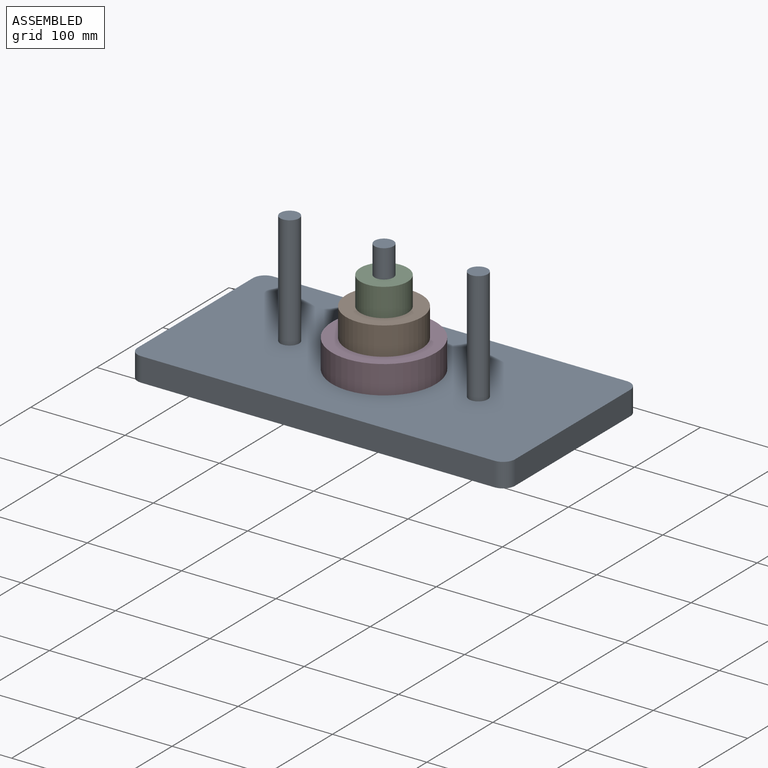
[diagram: assembled view]
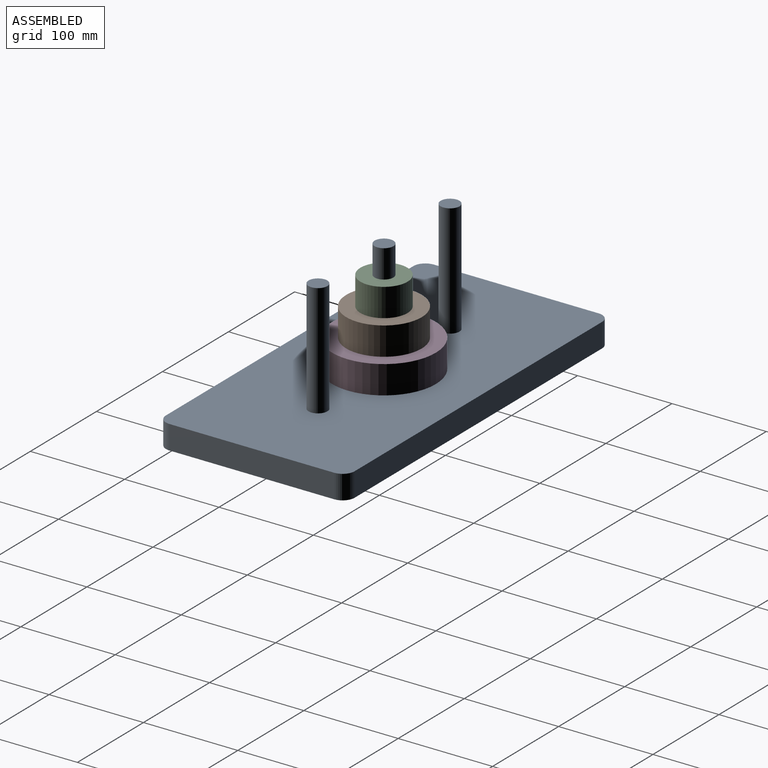
[diagram: assembled view, second angle]
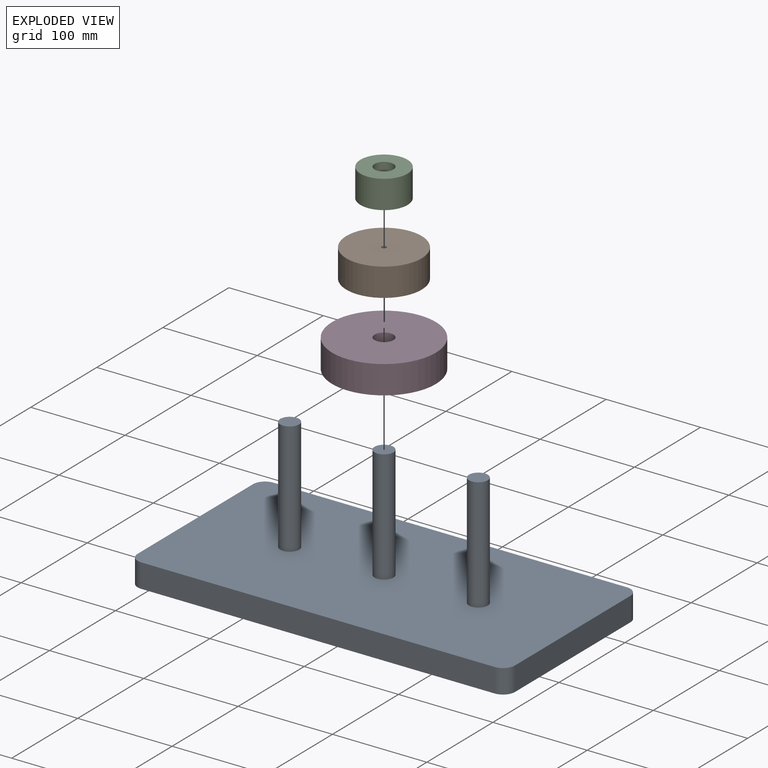
[diagram: exploded view]
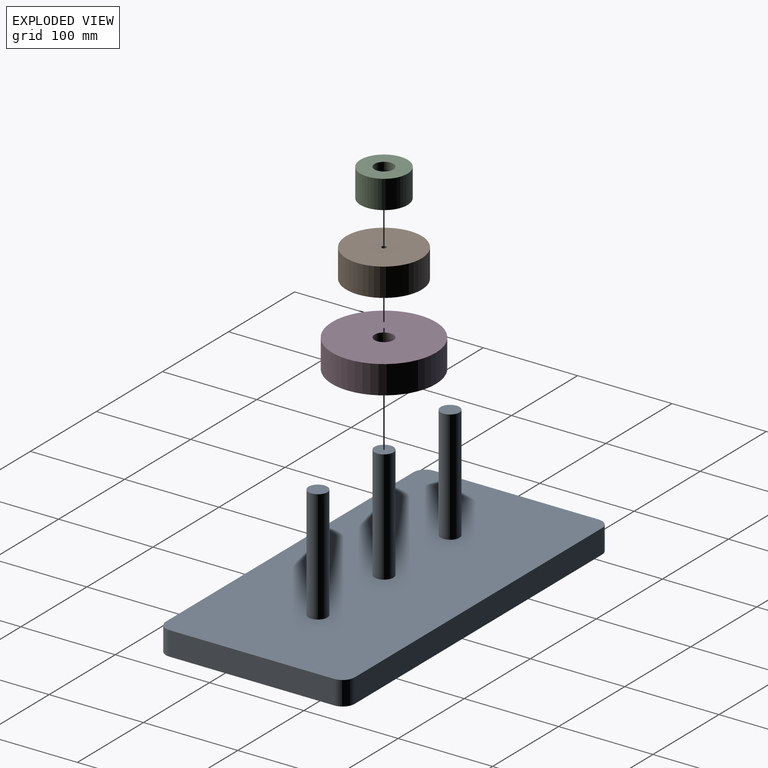
[diagram: exploded view, second angle]
ASSEMBLY  parts=4 mates=3
PART A: 16 faces, bbox 400x200x145.4 mm
  f0: plane 174.6x25.4mm, normal (1,0,0), area 4434.8mm2, adj f4,f5,f12,f15
  f1: plane 374.6x25.4mm, normal (0,1,0), area 9514.8mm2, adj f4,f5,f12,f13
  f2: plane 174.6x25.4mm, normal (-1,0,0), area 4434.8mm2, adj f4,f5,f13,f14
  f3: plane 374.6x25.4mm, normal (0,-1,0), area 9514.8mm2, adj f4,f5,f14,f15
  f4: plane 400x200mm, normal (0,0,1), area 78919.1mm2, adj f0,f1,f2,f3,f6,f8,f10,f12
  f5: plane 400x200mm, normal (0,0,-1), area 79861.5mm2, adj f0,f1,f2,f3,f12,f13,f14,f15
  f6: cylinder r=10mm len=120mm, axis (0,0,-1), area 7539.8mm2, adj f4,f7
  f7: plane 20x20mm, normal (0,0,1), area 314.2mm2, adj f6
  f8: cylinder r=10mm len=120mm, axis (0,0,-1), area 7539.8mm2, adj f4,f9
  f9: plane 20x20mm, normal (0,0,1), area 314.2mm2, adj f8
  f10: cylinder r=10mm len=120mm, axis (0,0,-1), area 7539.8mm2, adj f4,f11
  f11: plane 20x20mm, normal (0,0,1), area 314.2mm2, adj f10
  f12: cylinder r=12.7mm len=25.4mm, axis (0,0,-1), area 506.7mm2, adj f0,f1,f4,f5
  f13: cylinder r=12.7mm len=25.4mm, axis (0,0,1), area 506.7mm2, adj f1,f2,f4,f5
  f14: cylinder r=12.7mm len=25.4mm, axis (0,0,-1), area 506.7mm2, adj f2,f3,f4,f5
  f15: cylinder r=12.7mm len=25.4mm, axis (0,0,1), area 506.7mm2, adj f0,f3,f4,f5
PART B: 4 faces, bbox 80x80x30 mm
  f0: cylinder r=40mm len=80mm, axis (0,0,-1), area 7539.8mm2, adj f1,f2
  f1: plane 80x80mm, normal (0,0,1), area 5006.9mm2, adj f0,f3
  f2: plane 80x80mm, normal (0,0,-1), area 5006.9mm2, adj f0,f3
  f3: cylinder r=2.5mm len=30mm, axis (0,0,1), area 471.2mm2, adj f1,f2
PART C: 4 faces, bbox 50x50x30 mm
  f0: cylinder r=10mm len=30mm, axis (0,0,-1), area 1885mm2, adj f2,f3
  f1: cylinder r=25mm len=50mm, axis (0,0,-1), area 4712.4mm2, adj f2,f3
  f2: plane 50x50mm, normal (0,0,1), area 1649.3mm2, adj f0,f1
  f3: plane 50x50mm, normal (0,0,-1), area 1649.3mm2, adj f0,f1
PART D: 4 faces, bbox 110x110x30 mm
  f0: cylinder r=10mm len=30mm, axis (0,0,-1), area 1885mm2, adj f2,f3
  f1: cylinder r=55mm len=110mm, axis (0,0,-1), area 10367.3mm2, adj f2,f3
  f2: plane 110x110mm, normal (0,0,1), area 9189.2mm2, adj f0,f1
  f3: plane 110x110mm, normal (0,0,-1), area 9189.2mm2, adj f0,f1
PLACE A t=(-11.33,37.01,-7.37)mm
PLACE B t=(-11.33,37.01,48.03)mm
PLACE C t=(-11.33,37.01,78.03)mm
PLACE D t=(-11.33,37.01,18.03)mm
MATE slider C.f0 <-> B.f0  axis (0,0,-1) through (-11.33,37.01,78.03)mm
MATE slider D.f0 <-> A.f6  axis (0,0,-1) through (-11.33,37.01,18.03)mm
MATE slider B.f0 <-> D.f0  axis (0,0,-1) through (-11.33,37.01,48.03)mm
